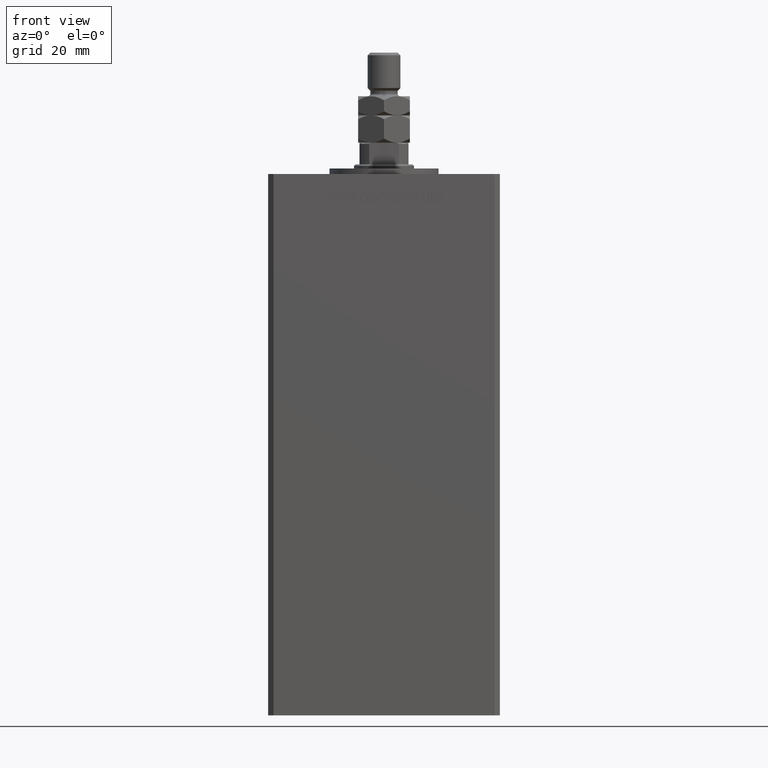
[diagram: clean part render]
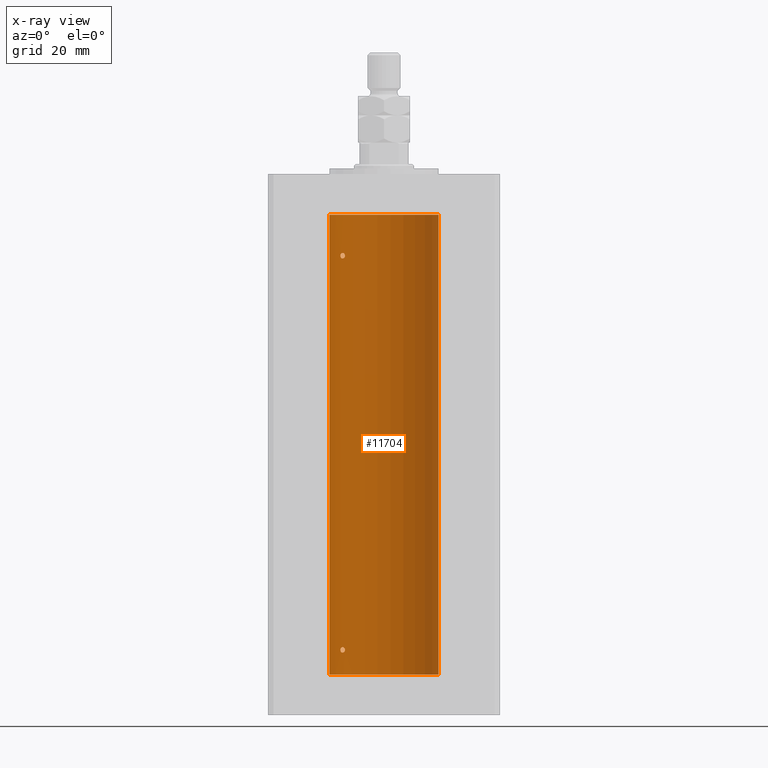
[diagram: x-ray — body ghosted, one internal face saturated and labeled with its STEP entity id]
A machine part, front view, then the same camera in x-ray: the body is ghosted and one INTERNAL B-rep face — a face not visible from any outside direction — is saturated and labeled: STEP entity #11704.
In plain terms, the highlighted cylindrical surface (partial cylindrical patch) has radius 20 mm, axis along (-0, -0, -1).
Its self-contained STEP definition (entity closure, byte-faithful):
#214 = CIRCLE ( 'NONE', #7180, 20.00000000000000000 ) ;
#395 = ORIENTED_EDGE ( 'NONE', *, *, #39554, .F. ) ;
#1175 = ORIENTED_EDGE ( 'NONE', *, *, #28653, .F. ) ;
#1501 = CARTESIAN_POINT ( 'NONE',  ( -15.99999999999999645, 12.00000000000000711, 153.5000000000000284 ) ) ;
#1842 = ORIENTED_EDGE ( 'NONE', *, *, #34789, .T. ) ;
#2059 = CARTESIAN_POINT ( 'NONE',  ( -16.00000000000000355, 12.00000000000000888, 9.154240719993492092 ) ) ;
#2309 = CARTESIAN_POINT ( 'NONE',  ( -14.98188199575990964, 13.25008090651448178, 154.4752364028578029 ) ) ;
#3062 = CARTESIAN_POINT ( 'NONE',  ( -14.44276720520014656, 13.83508275448404312, 154.0540486626503025 ) ) ;
#3096 = VERTEX_POINT ( 'NONE', #15159 ) ;
#3103 = CARTESIAN_POINT ( 'NONE',  ( -15.97265980134107721, 12.03662641108512332, 153.1953373148639344 ) ) ;
#3137 = CARTESIAN_POINT ( 'NONE',  ( -14.28285685708537756, 14.00000000000032863, 8.999999999999852562 ) ) ;
#3646 = CARTESIAN_POINT ( 'NONE',  ( -14.51590294503182932, 13.75881262167379404, 152.8367812074224048 ) ) ;
#4352 = DIRECTION ( 'NONE',  ( -0.000000000000000000, -0.000000000000000000, -1.000000000000000000 ) ) ;
#4696 = ORIENTED_EDGE ( 'NONE', *, *, #42237, .F. ) ;
#5340 = ORIENTED_EDGE ( 'NONE', *, *, #53617, .F. ) ;
#5360 = CARTESIAN_POINT ( 'NONE',  ( 20.00000000000000000, 2.449293598294706513E-15, 168.5000000000000000 ) ) ;
#6070 = DIRECTION ( 'NONE',  ( -0.000000000000000000, 0.000000000000000000, 1.000000000000000000 ) ) ;
#6397 = CARTESIAN_POINT ( 'NONE',  ( -14.56006338825494772, 13.71162570780885126, 9.705357955363313138 ) ) ;
#6809 = DIRECTION ( 'NONE',  ( -0.000000000000000000, -0.000000000000000000, -1.000000000000000000 ) ) ;
#6850 = CARTESIAN_POINT ( 'NONE',  ( -15.99999999999999645, 12.00000000000000533, 9.000000000000001776 ) ) ;
#7143 = CARTESIAN_POINT ( 'NONE',  ( -14.31936354392035149, 13.96291496472315785, 153.8044284570273419 ) ) ;
#7180 = AXIS2_PLACEMENT_3D ( 'NONE', #50899, #6070, #35147 ) ;
#7224 = CARTESIAN_POINT ( 'NONE',  ( -14.43642497935765512, 13.84184969151371547, 8.442053335922926394 ) ) ;
#7518 = VECTOR ( 'NONE', #20758, 1000.000000000000000 ) ;
#7576 = DIRECTION ( 'NONE',  ( -0.000000000000000000, 0.000000000000000000, 1.000000000000000000 ) ) ;
#7682 = CARTESIAN_POINT ( 'NONE',  ( -14.56006338825495483, 13.71162570780885481, 154.2053579553633824 ) ) ;
#7727 = CARTESIAN_POINT ( 'NONE',  ( -15.08054978948643488, 13.13774395934156658, 152.5027765441530221 ) ) ;
#8915 = VERTEX_POINT ( 'NONE', #25359 ) ;
#9509 = EDGE_LOOP ( 'NONE', ( #4696, #30340, #1842, #1175 ) ) ;
#9684 = CARTESIAN_POINT ( 'NONE',  ( -15.87710824431566614, 12.16238752415382152, 8.434921807322277587 ) ) ;
#9928 = CARTESIAN_POINT ( 'NONE',  ( -15.37869370082498044, 12.78737709343839057, 9.984378433483314552 ) ) ;
#10741 = CARTESIAN_POINT ( 'NONE',  ( -14.69171503997126571, 13.57092520311232420, 9.830547039779306218 ) ) ;
#11210 = CARTESIAN_POINT ( 'NONE',  ( -14.28285685708538111, 14.00000000000032685, 153.4999999999998863 ) ) ;
#11704 = ADVANCED_FACE ( 'NONE', ( #16032, #24455, #32091 ), #32611, .F. ) ;
#11906 = DIRECTION ( 'NONE',  ( 1.000000000000000000, 0.000000000000000000, 0.000000000000000000 ) ) ;
#12839 = CARTESIAN_POINT ( 'NONE',  ( -20.00000000000000000, 0.000000000000000000, 168.5000000000000000 ) ) ;
#13456 = CARTESIAN_POINT ( 'NONE',  ( -15.28000793038419758, 12.90520882930644042, 154.5021502285312920 ) ) ;
#13725 = CARTESIAN_POINT ( 'NONE',  ( -15.08229700616151625, 13.13572892147764826, 154.4974307527148198 ) ) ;
#14007 = CARTESIAN_POINT ( 'NONE',  ( -15.08229700616151270, 13.13572892147766247, 9.997430752714780766 ) ) ;
#14025 = EDGE_CURVE ( 'NONE', #8915, #39033, #48647, .T. ) ;
#14275 = CARTESIAN_POINT ( 'NONE',  ( -15.28000793038418870, 12.90520882930645108, 10.00215022853122981 ) ) ;
#14547 = CARTESIAN_POINT ( 'NONE',  ( -14.44276720520014123, 13.83508275448403957, 9.554048662650277635 ) ) ;
#14595 = B_SPLINE_CURVE_WITH_KNOTS ( 'NONE', 3,
 ( #52556, #48471, #3103, #19688, #36259, #53097, #44936, #7727, #15881, #24310, #40880, #3646, #20232, #36801, #46267, #29708 ),
 .UNSPECIFIED., .F., .F.,
 ( 4, 2, 2, 2, 2, 2, 2, 4 ),
 ( 0.000000000000000000, 0.0004556152471946448338, 0.0009112304943892896676, 0.001822460988778623354, 0.002278076235973289926, 0.002733691483167956498, 0.003189306730362623070, 0.003644921977557289642 ),
 .UNSPECIFIED. ) ;
#15159 = CARTESIAN_POINT ( 'NONE',  ( 20.00000000000000000, 2.449293598294706513E-15, 168.5000000000000000 ) ) ;
#15881 = CARTESIAN_POINT ( 'NONE',  ( -14.98166541227928761, 13.25033217142396325, 152.5247696149142485 ) ) ;
#16032 = FACE_OUTER_BOUND ( 'NONE', #9509, .T. ) ;
#16758 = CARTESIAN_POINT ( 'NONE',  ( -14.28285685708537756, 14.00000000000032863, 8.999999999999852562 ) ) ;
#17328 = CARTESIAN_POINT ( 'NONE',  ( -15.99999999999999645, 12.00000000000000711, 153.5000000000000284 ) ) ;
#17838 = CARTESIAN_POINT ( 'NONE',  ( -15.99999999999999645, 12.00000000000000533, 9.000000000000001776 ) ) ;
#18359 = CARTESIAN_POINT ( 'NONE',  ( -14.98188199575990254, 13.25008090651449244, 9.975236402857756701 ) ) ;
#18888 = CARTESIAN_POINT ( 'NONE',  ( -15.65267653428112027, 12.45028749062556983, 154.3454911519634720 ) ) ;
#18915 = CARTESIAN_POINT ( 'NONE',  ( -14.51590294503183820, 13.75881262167379049, 8.336781207422363948 ) ) ;
#19136 = CARTESIAN_POINT ( 'NONE',  ( -14.28285685708537756, 14.00000000000032863, 8.999999999999852562 ) ) ;
#19643 = CARTESIAN_POINT ( 'NONE',  ( -14.51882058315760204, 13.75524947942077958, 154.1587346592186236 ) ) ;
#19688 = CARTESIAN_POINT ( 'NONE',  ( -15.87710824431565548, 12.16238752415382507, 152.9349218073222971 ) ) ;
#20232 = CARTESIAN_POINT ( 'NONE',  ( -14.43642497935765334, 13.84184969151371547, 152.9420533359229637 ) ) ;
#20758 = DIRECTION ( 'NONE',  ( -0.000000000000000000, -0.000000000000000000, -1.000000000000000000 ) ) ;
#21750 = CARTESIAN_POINT ( 'NONE',  ( -20.00000000000000000, 0.000000000000000000, 168.5000000000000000 ) ) ;
#22445 = CARTESIAN_POINT ( 'NONE',  ( -14.28285685708573460, 14.00000000000003020, 9.152512609665841126 ) ) ;
#22722 = CARTESIAN_POINT ( 'NONE',  ( -15.87665094074984928, 12.16298652314402950, 9.566050066014014419 ) ) ;
#23273 = CARTESIAN_POINT ( 'NONE',  ( -14.69070843596623099, 13.57200975233014972, 8.170264738076779665 ) ) ;
#23537 = CARTESIAN_POINT ( 'NONE',  ( -14.98166541227929116, 13.25033217142396325, 8.024769614914273319 ) ) ;
#23673 = EDGE_LOOP ( 'NONE', ( #5340, #33649 ) ) ;
#23822 = ORIENTED_EDGE ( 'NONE', *, *, #14025, .F. ) ;
#24310 = CARTESIAN_POINT ( 'NONE',  ( -14.78531327857342959, 13.46907986586309924, 152.6090990069114923 ) ) ;
#24455 = FACE_BOUND ( 'NONE', #23673, .T. ) ;
#25359 = CARTESIAN_POINT ( 'NONE',  ( -14.28285685708538111, 14.00000000000032685, 153.4999999999998863 ) ) ;
#26255 = CARTESIAN_POINT ( 'NONE',  ( -15.99999999999999645, 12.00000000000000533, 9.000000000000001776 ) ) ;
#26275 = CARTESIAN_POINT ( 'NONE',  ( -15.80909732170550441, 12.25106527276995649, 8.324451780901405584 ) ) ;
#26504 = CARTESIAN_POINT ( 'NONE',  ( -15.97258576326347068, 12.03672672663914867, 153.8051374092137848 ) ) ;
#26513 = CARTESIAN_POINT ( 'NONE',  ( -14.78630942130979342, 13.46798002156744545, 9.891415279583977593 ) ) ;
#26772 = CARTESIAN_POINT ( 'NONE',  ( -15.37869370082499110, 12.78737709343838524, 154.4843784334833288 ) ) ;
#27328 = CARTESIAN_POINT ( 'NONE',  ( -15.56338254739985594, 12.56194079578775202, 9.906815049669283724 ) ) ;
#28653 = EDGE_CURVE ( 'NONE', #47321, #46265, #214, .T. ) ;
#29708 = CARTESIAN_POINT ( 'NONE',  ( -14.28285685708538111, 14.00000000000032685, 153.4999999999998863 ) ) ;
#30039 = CARTESIAN_POINT ( 'NONE',  ( -15.56338254739985949, 12.56194079578775025, 154.4068150496693477 ) ) ;
#30340 = ORIENTED_EDGE ( 'NONE', *, *, #34959, .T. ) ;
#30588 = CARTESIAN_POINT ( 'NONE',  ( -14.78630942130979697, 13.46798002156743479, 154.3914152795840380 ) ) ;
#31146 = CARTESIAN_POINT ( 'NONE',  ( -15.65267653428113093, 12.45028749062556450, 9.845491151963429388 ) ) ;
#31437 = CARTESIAN_POINT ( 'NONE',  ( -15.08054978948644198, 13.13774395934156836, 8.002776544152998994 ) ) ;
#31968 = CARTESIAN_POINT ( 'NONE',  ( -15.37869471769012897, 12.79018928545119671, 7.995165913711804073 ) ) ;
#32091 = FACE_BOUND ( 'NONE', #51080, .T. ) ;
#32354 = CARTESIAN_POINT ( 'NONE',  ( 0.000000000000000000, 0.000000000000000000, 168.5000000000000000 ) ) ;
#32611 = CYLINDRICAL_SURFACE ( 'NONE', #51951, 20.00000000000000000 ) ;
#33649 = ORIENTED_EDGE ( 'NONE', *, *, #47570, .F. ) ;
#34423 = CARTESIAN_POINT ( 'NONE',  ( -16.00000000000000355, 12.00000000000000711, 8.845692188641406162 ) ) ;
#34789 = EDGE_CURVE ( 'NONE', #36194, #46265, #49460, .T. ) ;
#34959 = EDGE_CURVE ( 'NONE', #3096, #36194, #49739, .T. ) ;
#35147 = DIRECTION ( 'NONE',  ( 1.000000000000000000, 0.000000000000000000, 0.000000000000000000 ) ) ;
#35202 = CARTESIAN_POINT ( 'NONE',  ( -14.31936354392034616, 13.96291496472316496, 9.304428457027322352 ) ) ;
#36105 = VERTEX_POINT ( 'NONE', #19136 ) ;
#36194 = VERTEX_POINT ( 'NONE', #12839 ) ;
#36259 = CARTESIAN_POINT ( 'NONE',  ( -15.80909732170550441, 12.25106527276996182, 152.8244517809014269 ) ) ;
#36801 = CARTESIAN_POINT ( 'NONE',  ( -14.31871019372461085, 13.96358505023716212, 153.1974785395778724 ) ) ;
#38469 = CARTESIAN_POINT ( 'NONE',  ( -15.87665094074984573, 12.16298652314402595, 154.0660500660140713 ) ) ;
#38730 = CARTESIAN_POINT ( 'NONE',  ( -15.99999999999999289, 12.00000000000001243, 153.6542407199935383 ) ) ;
#39033 = VERTEX_POINT ( 'NONE', #17328 ) ;
#39269 = CARTESIAN_POINT ( 'NONE',  ( -15.80861854366320074, 12.25167421322532668, 154.1760529919017415 ) ) ;
#39279 = CARTESIAN_POINT ( 'NONE',  ( -14.51882058315760027, 13.75524947942078313, 9.658734659218600527 ) ) ;
#39554 = EDGE_CURVE ( 'NONE', #39033, #8915, #14595, .T. ) ;
#39840 = CARTESIAN_POINT ( 'NONE',  ( -14.78531327857342781, 13.46907986586309569, 8.109099006911453245 ) ) ;
#40101 = B_SPLINE_CURVE_WITH_KNOTS ( 'NONE', 3,
 ( #17838, #34423, #46901, #9684, #26275, #42829, #31968, #31437, #23537, #39840, #23273, #18915, #7224, #52331, #40107, #3137 ),
 .UNSPECIFIED., .F., .F.,
 ( 4, 2, 2, 2, 2, 2, 2, 4 ),
 ( 1.734723475976807094E-18, 0.0004556152471946670057, 0.0009112304943893322767, 0.001822460988778654796, 0.002278076235973315947, 0.002733691483167977315, 0.003189306730362638249, 0.003644921977557299617 ),
 .UNSPECIFIED. ) ;
#40107 = CARTESIAN_POINT ( 'NONE',  ( -14.28285685708575414, 14.00000000000000000, 8.847421050659345809 ) ) ;
#40204 = CARTESIAN_POINT ( 'NONE',  ( 0.000000000000000000, 0.000000000000000000, 168.5000000000000000 ) ) ;
#40297 = CARTESIAN_POINT ( 'NONE',  ( -14.40763032799402055, 13.87162499441319063, 153.9952174752553447 ) ) ;
#40492 = DIRECTION ( 'NONE',  ( -1.000000000000000000, 0.000000000000000000, 0.000000000000000000 ) ) ;
#40759 = CARTESIAN_POINT ( 'NONE',  ( 20.00000000000000000, 2.449293598294706513E-15, 0.000000000000000000 ) ) ;
#40880 = CARTESIAN_POINT ( 'NONE',  ( -14.69070843596622922, 13.57200975233015505, 152.6702647380768667 ) ) ;
#42237 = EDGE_CURVE ( 'NONE', #3096, #47321, #42579, .T. ) ;
#42407 = VERTEX_POINT ( 'NONE', #6850 ) ;
#42579 = LINE ( 'NONE', #5360, #7518 ) ;
#42829 = CARTESIAN_POINT ( 'NONE',  ( -15.57359523075763086, 12.55100654799543136, 8.068614275410753933 ) ) ;
#43659 = VECTOR ( 'NONE', #4352, 1000.000000000000000 ) ;
#43877 = CARTESIAN_POINT ( 'NONE',  ( -15.80861854366319719, 12.25167421322532491, 9.676052991901704203 ) ) ;
#44892 = CARTESIAN_POINT ( 'NONE',  ( -14.28285685708573105, 14.00000000000002665, 153.6525126096659051 ) ) ;
#44936 = CARTESIAN_POINT ( 'NONE',  ( -15.37869471769012542, 12.79018928545120204, 152.4951659137118440 ) ) ;
#45766 = CARTESIAN_POINT ( 'NONE',  ( -20.00000000000000000, 0.000000000000000000, 0.000000000000000000 ) ) ;
#46265 = VERTEX_POINT ( 'NONE', #45766 ) ;
#46267 = CARTESIAN_POINT ( 'NONE',  ( -14.28285685708575770, 13.99999999999999822, 153.3474210506593636 ) ) ;
#46282 = AXIS2_PLACEMENT_3D ( 'NONE', #40204, #7576, #11906 ) ;
#46901 = CARTESIAN_POINT ( 'NONE',  ( -15.97265980134107721, 12.03662641108511977, 8.695337314863895273 ) ) ;
#47321 = VERTEX_POINT ( 'NONE', #40759 ) ;
#47570 = EDGE_CURVE ( 'NONE', #36105, #42407, #50926, .T. ) ;
#48471 = CARTESIAN_POINT ( 'NONE',  ( -15.99999999999999289, 12.00000000000000888, 153.3456921886414364 ) ) ;
#48647 = B_SPLINE_CURVE_WITH_KNOTS ( 'NONE', 3,
 ( #11210, #44892, #7143, #40297, #3062, #19643, #7682, #50680, #30588, #2309, #13725, #13456, #26772, #30039, #18888, #39269, #38469, #26504, #38730, #1501 ),
 .UNSPECIFIED., .F., .F.,
 ( 4, 2, 2, 2, 2, 2, 2, 2, 2, 4 ),
 ( 0.003644921977557289642, 0.004100339128177169119, 0.004328047703487108641, 0.004555756278797049030, 0.005011173429416889910, 0.005466590580036730790, 0.005922007730656571670, 0.006377424881276412549, 0.006832842031896252562, 0.007288259182516093442 ),
 .UNSPECIFIED. ) ;
#49460 = LINE ( 'NONE', #21750, #43659 ) ;
#49739 = CIRCLE ( 'NONE', #46282, 20.00000000000000000 ) ;
#50680 = CARTESIAN_POINT ( 'NONE',  ( -14.69171503997127104, 13.57092520311232420, 154.3305470397793329 ) ) ;
#50899 = CARTESIAN_POINT ( 'NONE',  ( 0.000000000000000000, 0.000000000000000000, 0.000000000000000000 ) ) ;
#50926 = B_SPLINE_CURVE_WITH_KNOTS ( 'NONE', 3,
 ( #16758, #22445, #35202, #51772, #14547, #39279, #6397, #10741, #26513, #18359, #14007, #14275, #9928, #27328, #31146, #43877, #22722, #51501, #2059, #26255 ),
 .UNSPECIFIED., .F., .F.,
 ( 4, 2, 2, 2, 2, 2, 2, 2, 2, 4 ),
 ( 0.003644921977557299617, 0.004100339128177156109, 0.004328047703487083488, 0.004555756278797011734, 0.005011173429416868226, 0.005466590580036723851, 0.005922007730656580343, 0.006377424881276436835, 0.006832842031896293328, 0.007288259182516148953 ),
 .UNSPECIFIED. ) ;
#51080 = EDGE_LOOP ( 'NONE', ( #395, #23822 ) ) ;
#51501 = CARTESIAN_POINT ( 'NONE',  ( -15.97258576326346713, 12.03672672663914689, 9.305137409213726229 ) ) ;
#51772 = CARTESIAN_POINT ( 'NONE',  ( -14.40763032799400989, 13.87162499441319952, 9.495217475255243400 ) ) ;
#51951 = AXIS2_PLACEMENT_3D ( 'NONE', #32354, #6809, #40492 ) ;
#52331 = CARTESIAN_POINT ( 'NONE',  ( -14.31871019372461795, 13.96358505023715679, 8.697478539577890189 ) ) ;
#52556 = CARTESIAN_POINT ( 'NONE',  ( -15.99999999999999645, 12.00000000000000711, 153.5000000000000284 ) ) ;
#53097 = CARTESIAN_POINT ( 'NONE',  ( -15.57359523075762908, 12.55100654799543847, 152.5686142754107379 ) ) ;
#53617 = EDGE_CURVE ( 'NONE', #42407, #36105, #40101, .T. ) ;